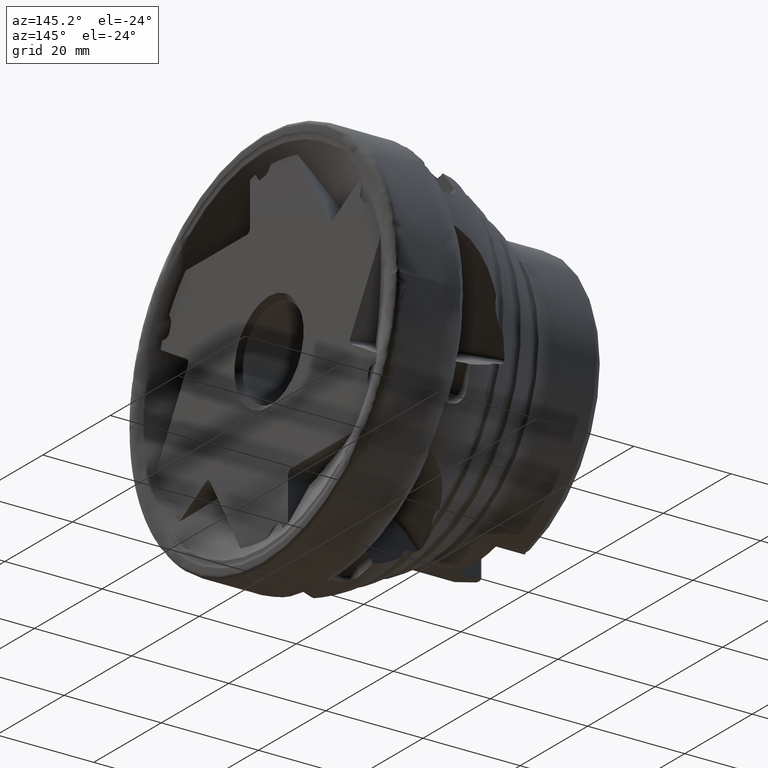
[diagram: clean part render]
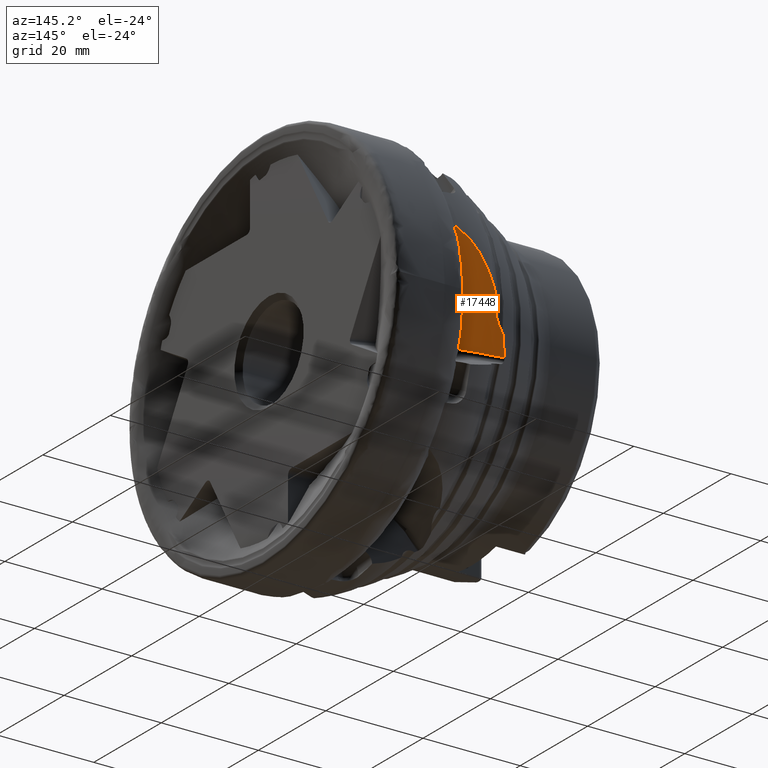
[diagram: same view with one face highlighted and labeled with its STEP entity id]
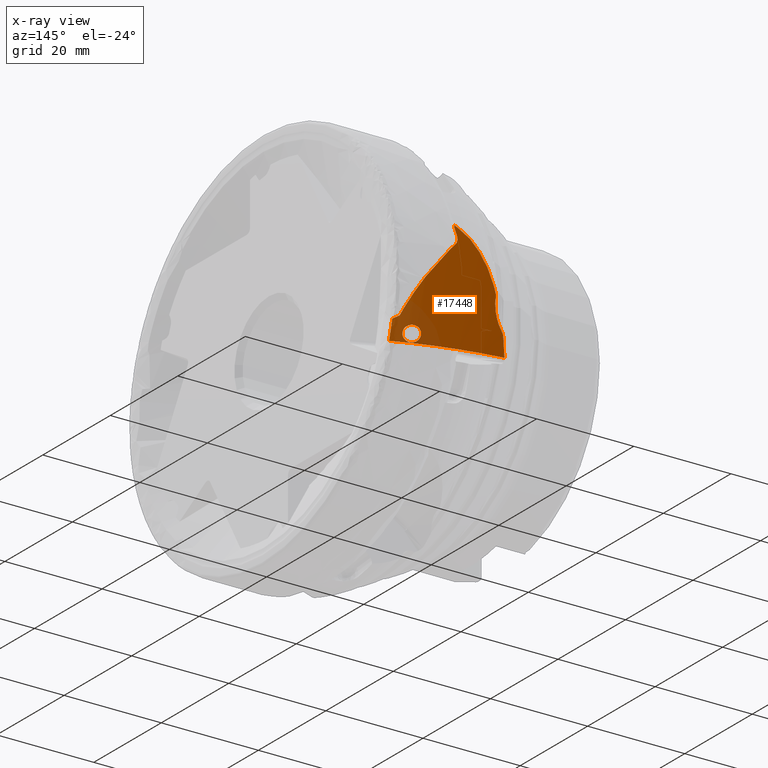
[diagram: x-ray of the same camera — body ghosted, the highlighted face saturated]
A machine part, auxiliary view. The second image highlights one B-rep face of the part: STEP entity #17448.
The next image is the same camera in x-ray: the body ghosted, the highlighted face saturated — about 15% of this face is hidden behind the body in this view.
In plain terms, the highlighted cylindrical surface (partial cylindrical patch) has radius 20 mm, axis along (-0.1638, -0.4932, -0.8543).
Its self-contained STEP definition (entity closure, byte-faithful):
#3 = CARTESIAN_POINT ( 'NONE',  ( -21.35698739462251100, 37.22692158733478600, 2.353677772531312900 ) ) ;
#100 = CARTESIAN_POINT ( 'NONE',  ( -8.487603763851955900, 27.03146724210835600, -1.253296767382191300 ) ) ;
#160 = CARTESIAN_POINT ( 'NONE',  ( -11.33136687848233000, 26.91337459741548000, -2.142088944006622000 ) ) ;
#164 = VERTEX_POINT ( 'NONE', #7594 ) ;
#171 = CARTESIAN_POINT ( 'NONE',  ( -9.018171294729210500, 28.00404665317658700, 0.2983372642901978600 ) ) ;
#232 = CARTESIAN_POINT ( 'NONE',  ( -10.75676454546075300, 26.70886308392896400, -2.277515534888244500 ) ) ;
#274 = CYLINDRICAL_SURFACE ( 'NONE', #12368, 20.00000000000000700 ) ;
#301 = CARTESIAN_POINT ( 'NONE',  ( -13.10549689818851800, 26.87674796982154400, -2.993337145330894800 ) ) ;
#360 = CARTESIAN_POINT ( 'NONE',  ( -10.10931191429867400, 25.70001652276533800, -3.761998595948406400 ) ) ;
#373 = CARTESIAN_POINT ( 'NONE',  ( -13.37372296996332800, 36.84901659969015200, 11.84874238029040100 ) ) ;
#440 = CARTESIAN_POINT ( 'NONE',  ( -13.21841133929820000, 34.86755851196540600, 9.077552072719226900 ) ) ;
#493 = CARTESIAN_POINT ( 'NONE',  ( -21.51366886119073000, 37.03029541050688100, 1.853235943045430200 ) ) ;
#503 = CARTESIAN_POINT ( 'NONE',  ( -12.05028575128478600, 33.05630474114699500, 7.147626323386392100 ) ) ;
#756 = EDGE_CURVE ( 'NONE', #3820, #1860, #11539, .T. ) ;
#829 = ORIENTED_EDGE ( 'NONE', *, *, #17205, .T. ) ;
#1036 = CARTESIAN_POINT ( 'NONE',  ( -13.21702162980494100, 26.25023289032346700, -4.028446331762630500 ) ) ;
#1099 = CARTESIAN_POINT ( 'NONE',  ( -11.39320358636300800, 25.36426994288996900, -4.667037713368366700 ) ) ;
#1287 = CARTESIAN_POINT ( 'NONE',  ( -12.73966423366988500, 37.20949245440171900, 12.89159267683851000 ) ) ;
#1449 = CARTESIAN_POINT ( 'NONE',  ( -8.805491999326914500, 27.56765151760006200, -0.3938446725256390900 ) ) ;
#1510 = CARTESIAN_POINT ( 'NONE',  ( -8.188039216842380300, 26.91111515404835000, -1.426653542736536600 ) ) ;
#1644 = ORIENTED_EDGE ( 'NONE', *, *, #3296, .F. ) ;
#1713 = CARTESIAN_POINT ( 'NONE',  ( -13.99840494508419300, 36.18023990768884300, 10.34561298674690200 ) ) ;
#1734 = CARTESIAN_POINT ( 'NONE',  ( -21.50563949276514100, 37.08555638612772000, 1.930808845727688400 ) ) ;
#1775 = CARTESIAN_POINT ( 'NONE',  ( -13.74243016536638100, 36.68595090557780500, 11.29809648371620600 ) ) ;
#1793 = CARTESIAN_POINT ( 'NONE',  ( -23.94008879940602700, 35.67367860266401900, -4.292504080235083600 ) ) ;
#1821 = CARTESIAN_POINT ( 'NONE',  ( -22.66564008822064100, 35.77088268260508400, -1.657889619683016200 ) ) ;
#1860 = VERTEX_POINT ( 'NONE', #12170 ) ;
#1891 = CARTESIAN_POINT ( 'NONE',  ( -12.68619492598074000, 27.02302649424385100, -2.552058399381838400 ) ) ;
#1895 = CARTESIAN_POINT ( 'NONE',  ( -12.73966423366988500, 37.20949245440171900, 12.89159267683851000 ) ) ;
#1967 = CARTESIAN_POINT ( 'NONE',  ( -12.81601859033911800, 37.14600330654131000, 12.73777290038139600 ) ) ;
#2113 = CARTESIAN_POINT ( 'NONE',  ( -23.77480656102061500, 35.76115449471539900, -3.856415506058682700 ) ) ;
#2753 = CARTESIAN_POINT ( 'NONE',  ( -12.82274174710279400, 25.83946406291871200, -4.478964703168004200 ) ) ;
#2819 = CARTESIAN_POINT ( 'NONE',  ( -13.02756850959754200, 26.00856528304806400, -4.311296778219222900 ) ) ;
#2968 = CARTESIAN_POINT ( 'NONE',  ( -7.389837275860943000, 26.61345486813350900, -1.904144003451433600 ) ) ;
#3039 = EDGE_CURVE ( 'NONE', #10574, #13895, #13698, .T. ) ;
#3112 = VERTEX_POINT ( 'NONE', #360 ) ;
#3143 = CARTESIAN_POINT ( 'NONE',  ( -22.82910811290572900, 35.72351031567107100, -2.017763689393240700 ) ) ;
#3151 = CARTESIAN_POINT ( 'NONE',  ( -8.930957648319610700, 27.81605169535893300, 1.287162637211914100E-011 ) ) ;
#3205 = CARTESIAN_POINT ( 'NONE',  ( -21.67954234183394700, 36.54732012621410300, 1.007184445359403400 ) ) ;
#3296 = EDGE_CURVE ( 'NONE', #12126, #3820, #10193, .T. ) ;
#3424 = CARTESIAN_POINT ( 'NONE',  ( -13.90981149430509600, 36.54888357619060500, 10.95445631713279900 ) ) ;
#3489 = CARTESIAN_POINT ( 'NONE',  ( -13.59934015681832900, 35.46369403815785400, 9.643532846223594700 ) ) ;
#3681 = DIRECTION ( 'NONE',  ( -0.1638425078055066300, -0.4932432545499215200, -0.8543223773710975100 ) ) ;
#3712 = CARTESIAN_POINT ( 'NONE',  ( -7.389837275860943000, 26.61345486813350900, -1.904144003451433600 ) ) ;
#3820 = VERTEX_POINT ( 'NONE', #5899 ) ;
#4088 = CARTESIAN_POINT ( 'NONE',  ( -10.90259280086075400, 25.38064102083238900, -4.490773307575353500 ) ) ;
#4215 = CARTESIAN_POINT ( 'NONE',  ( -10.39813553146027700, 25.50608900250563200, -4.150514167932356300 ) ) ;
#4273 = CARTESIAN_POINT ( 'NONE',  ( -10.15138207479447600, 25.65442175482732200, -3.847037698668992700 ) ) ;
#4372 = CARTESIAN_POINT ( 'NONE',  ( -24.64162791851173400, 34.97773636613374700, -6.505853684649499000 ) ) ;
#4476 = B_SPLINE_CURVE_WITH_KNOTS ( 'NONE', 3,
 ( #9593, #18553, #4999, #6701, #9535, #8062 ),
 .UNSPECIFIED., .F., .F.,
 ( 4, 2, 4 ),
 ( 0.004743230221606898000, 0.005463370634049653400, 0.006183511046492408100 ),
 .UNSPECIFIED. ) ;
#4477 = CARTESIAN_POINT ( 'NONE',  ( -8.562142530267458100, 27.06020102734981600, -1.213775207771076200 ) ) ;
#4549 = CARTESIAN_POINT ( 'NONE',  ( -9.769569444869960200, 29.34091459919913800, 2.314786795120991500 ) ) ;
#4671 = CARTESIAN_POINT ( 'NONE',  ( -11.53712322934124800, 26.96441207940456800, -2.138153975304117900 ) ) ;
#4675 = CARTESIAN_POINT ( 'NONE',  ( -8.716646907799296100, 27.38242630131827600, -0.6914940557986768400 ) ) ;
#4731 = CARTESIAN_POINT ( 'NONE',  ( -21.51366886119073000, 37.03029541050688100, 1.853235943045430200 ) ) ;
#4742 = CARTESIAN_POINT ( 'NONE',  ( -12.92000287561025800, 34.40299873816738300, 8.608863474226412300 ) ) ;
#4809 = CARTESIAN_POINT ( 'NONE',  ( -13.08139445723112500, 36.98531259563015500, 12.28895013479475500 ) ) ;
#4873 = ORIENTED_EDGE ( 'NONE', *, *, #10517, .F. ) ;
#4875 = CARTESIAN_POINT ( 'NONE',  ( -12.93565579809423300, 37.05510051663141300, 12.50877189704518400 ) ) ;
#4936 = CARTESIAN_POINT ( 'NONE',  ( -13.67486079712597800, 35.58358841343007800, 9.756469715962373000 ) ) ;
#4999 = CARTESIAN_POINT ( 'NONE',  ( -23.21051940655157300, 35.67992348270923500, -2.802923446848105900 ) ) ;
#5006 = CARTESIAN_POINT ( 'NONE',  ( -12.76007896073398000, 37.19464124385619600, 12.85362133527217000 ) ) ;
#5507 = EDGE_CURVE ( 'NONE', #8751, #3112, #13807, .T. ) ;
#5649 = CARTESIAN_POINT ( 'NONE',  ( -11.18879738148129600, 25.35844090640086200, -4.611467833415601600 ) ) ;
#5699 = CARTESIAN_POINT ( 'NONE',  ( -16.43527252023047000, 37.80602642600208400, 10.14490336675689400 ) ) ;
#5784 = CARTESIAN_POINT ( 'NONE',  ( -13.17956543518276600, 26.18894328721484000, -4.104919547730936800 ) ) ;
#5899 = CARTESIAN_POINT ( 'NONE',  ( -20.71060675804169500, 37.45944537741488000, 3.724379154416995100 ) ) ;
#5909 = B_SPLINE_CURVE_WITH_KNOTS ( 'NONE', 3,
 ( #1287, #7280, #14848, #19335 ),
 .UNSPECIFIED., .F., .F.,
 ( 4, 4 ),
 ( 0.009791526005842422100, 0.01058030403952709900 ),
 .UNSPECIFIED. ) ;
#5998 = CARTESIAN_POINT ( 'NONE',  ( -8.618326002400953800, 27.19874801870867400, -0.9870732044077277200 ) ) ;
#6063 = CARTESIAN_POINT ( 'NONE',  ( -9.599411818024114100, 29.05028970220067200, 1.889075306732855800 ) ) ;
#6182 = CARTESIAN_POINT ( 'NONE',  ( -21.53048751389069100, 36.91454344753186900, 1.690748479542196500 ) ) ;
#6259 = CARTESIAN_POINT ( 'NONE',  ( -13.17858225128658700, 36.93933030651033500, 12.14223915724107200 ) ) ;
#6295 = CARTESIAN_POINT ( 'NONE',  ( -13.18327692371711100, 26.79245159033556000, -3.165565655191946400 ) ) ;
#6319 = CARTESIAN_POINT ( 'NONE',  ( -13.66700778380944900, 36.71675537023855200, 11.40778410829822500 ) ) ;
#6455 = CARTESIAN_POINT ( 'NONE',  ( -14.00482104618721000, 36.28591208183188900, 10.49227008728961700 ) ) ;
#6523 = CARTESIAN_POINT ( 'NONE',  ( -11.22459229204468500, 31.75537558237612100, 5.620100004712858400 ) ) ;
#6701 = CARTESIAN_POINT ( 'NONE',  ( -23.43142938601717500, 35.69261183380714200, -3.227527749895421100 ) ) ;
#6765 = CARTESIAN_POINT ( 'NONE',  ( -17.40217997283556900, 37.86364169704514600, 9.046712885416068800 ) ) ;
#6882 = FACE_OUTER_BOUND ( 'NONE', #15674, .T. ) ;
#6932 = CARTESIAN_POINT ( 'NONE',  ( -23.66625336517632400, 35.74943948602263100, -3.644844838898282800 ) ) ;
#7173 = CARTESIAN_POINT ( 'NONE',  ( -13.29892285383679400, 26.60315717532660100, -3.521256661866992500 ) ) ;
#7177 = ORIENTED_EDGE ( 'NONE', *, *, #12308, .F. ) ;
#7236 = CARTESIAN_POINT ( 'NONE',  ( -10.20387745946594800, 25.61311814216556800, -3.927399534518599500 ) ) ;
#7280 = CARTESIAN_POINT ( 'NONE',  ( -12.97206458974979200, 37.25443764584021300, 12.77376384844694000 ) ) ;
#7368 = CARTESIAN_POINT ( 'NONE',  ( -13.26114916288432100, 26.70805527161941800, -3.337998353949306600 ) ) ;
#7443 = CARTESIAN_POINT ( 'NONE',  ( -8.089468592005330200, 26.87126751836628500, -1.486689585924167300 ) ) ;
#7500 = CARTESIAN_POINT ( 'NONE',  ( -8.576963324810437300, 27.10673831636134400, -1.136993049854909900 ) ) ;
#7560 = CARTESIAN_POINT ( 'NONE',  ( -9.823234451162955200, 29.43853579686313500, 2.457467930066788800 ) ) ;
#7594 = CARTESIAN_POINT ( 'NONE',  ( -12.73966423366988500, 37.20949245440171900, 12.89159267683851000 ) ) ;
#7672 = CARTESIAN_POINT ( 'NONE',  ( -11.94092485594582700, 27.02934240265900500, -2.200493792647141500 ) ) ;
#7700 = CARTESIAN_POINT ( 'NONE',  ( -21.51366886119073000, 37.03029541050688100, 1.853235943045430200 ) ) ;
#7738 = CARTESIAN_POINT ( 'NONE',  ( -12.13974076754452700, 27.04697698592768200, -2.258930621122060800 ) ) ;
#7769 = CARTESIAN_POINT ( 'NONE',  ( -21.39585282600767300, 37.21165902479405900, 2.268340803946936800 ) ) ;
#7797 = CARTESIAN_POINT ( 'NONE',  ( -12.42559446394491500, 27.05005606982186400, -2.384515277794818600 ) ) ;
#7805 = CARTESIAN_POINT ( 'NONE',  ( -13.90741731448520500, 35.94678061561968000, 10.08741416894188200 ) ) ;
#7865 = CARTESIAN_POINT ( 'NONE',  ( -11.84063069344034100, 27.01615922447116000, -2.179187062366525000 ) ) ;
#7900 = CARTESIAN_POINT ( 'NONE',  ( -23.90414891483517600, 35.70598884262130200, -4.183569302285696300 ) ) ;
#7936 = CARTESIAN_POINT ( 'NONE',  ( -12.82544541010480500, 37.12254543929035600, 12.69584338314953300 ) ) ;
#8009 = CARTESIAN_POINT ( 'NONE',  ( -12.33735560975294600, 33.49903461440976600, 7.641864390229705400 ) ) ;
#8062 = CARTESIAN_POINT ( 'NONE',  ( -23.66625336517632400, 35.74943948602263100, -3.644844838898282800 ) ) ;
#8067 = B_SPLINE_CURVE_WITH_KNOTS ( 'NONE', 3,
 ( #6932, #17906, #2113, #11201, #7900, #18463 ),
 .UNSPECIFIED., .F., .F.,
 ( 4, 2, 4 ),
 ( 3.966242301486055800E-007, 0.0003560846957622191100, 0.0007117727672942896800 ),
 .UNSPECIFIED. ) ;
#8271 = CARTESIAN_POINT ( 'NONE',  ( -19.83119669721524400, 37.70284028292128700, 5.441427261978064100 ) ) ;
#8355 = DIRECTION ( 'NONE',  ( -0.1638425078055066000, -0.4932432545499214600, -0.8543223773710975100 ) ) ;
#8360 = EDGE_CURVE ( 'NONE', #19173, #164, #14766, .T. ) ;
#8402 = VERTEX_POINT ( 'NONE', #18293 ) ;
#8444 = B_SPLINE_CURVE_WITH_KNOTS ( 'NONE', 3,
 ( #2968, #13503, #10585, #7443, #1510, #16544, #19499, #16665, #100, #12112, #10397, #4477, #13689, #7500, #14999, #5998, #10464, #19433, #4675, #1449, #18039, #11919 ),
 .UNSPECIFIED., .F., .F.,
 ( 4, 2, 2, 2, 2, 2, 2, 2, 2, 2, 4 ),
 ( 2.076592445744511200E-015, 0.0007324604447470476700, 0.001098690667119530700, 0.001281805778305769900, 0.001373363333898887300, 0.001419142111695443900, 0.001464920889492000400, 0.001648036000678220600, 0.001831151111864441400, 0.002197381334236883800, 0.002929841778981763100 ),
 .UNSPECIFIED. ) ;
#8449 = ORIENTED_EDGE ( 'NONE', *, *, #8360, .F. ) ;
#8514 = CARTESIAN_POINT ( 'NONE',  ( -22.99999999999999600, 35.69990676882624600, -2.372878544961108300 ) ) ;
#8552 = CARTESIAN_POINT ( 'NONE',  ( -3.264018289349467600, 39.03411670887214800, 19.60907336833998500 ) ) ;
#8741 = CARTESIAN_POINT ( 'NONE',  ( -17.08778751747194800, 37.85108122603276800, 9.423982240822800400 ) ) ;
#8748 = CARTESIAN_POINT ( 'NONE',  ( -11.80181317055899500, 25.41747698841190900, -4.723366061025629400 ) ) ;
#8751 = VERTEX_POINT ( 'NONE', #6295 ) ;
#8797 = CARTESIAN_POINT ( 'NONE',  ( -20.28709862184996400, 37.59895643065703300, 4.591911649937205900 ) ) ;
#8813 = CARTESIAN_POINT ( 'NONE',  ( -12.58396336906004000, 25.68704668507855600, -4.609908845858806900 ) ) ;
#9074 = CARTESIAN_POINT ( 'NONE',  ( -10.10657475450916800, 29.92983635952509000, 3.162165224181376500 ) ) ;
#9150 = CARTESIAN_POINT ( 'NONE',  ( -8.015451015709159000, 24.73006232692442200, -5.166275575421843200 ) ) ;
#9229 = CARTESIAN_POINT ( 'NONE',  ( -24.95008533914213800, 34.56978414381309500, -7.599506299056047400 ) ) ;
#9271 = CARTESIAN_POINT ( 'NONE',  ( -10.07985089483686600, 26.22433918512649200, -2.886527317359588900 ) ) ;
#9336 = CARTESIAN_POINT ( 'NONE',  ( -12.98611837135493000, 26.94244928551016100, -2.828338953844379900 ) ) ;
#9344 = CARTESIAN_POINT ( 'NONE',  ( -12.78056964337569400, 37.17986989210519500, 12.81567056863614300 ) ) ;
#9352 = CARTESIAN_POINT ( 'NONE',  ( -21.14788859506796500, 37.30903526500795700, 2.812796764722076800 ) ) ;
#9411 = CARTESIAN_POINT ( 'NONE',  ( -13.76695866864741900, 36.67521047203737100, 11.26131093749696200 ) ) ;
#9478 = CARTESIAN_POINT ( 'NONE',  ( -13.88122383768387500, 36.58500531211954900, 11.03158158055565100 ) ) ;
#9535 = CARTESIAN_POINT ( 'NONE',  ( -23.54544547751019200, 35.71033035473097100, -3.437964494477284500 ) ) ;
#9593 = CARTESIAN_POINT ( 'NONE',  ( -22.99999999999999600, 35.69990676882624600, -2.372878544961108300 ) ) ;
#9962 = AXIS2_PLACEMENT_3D ( 'NONE', #15667, #3681, #14205 ) ;
#10193 = B_SPLINE_CURVE_WITH_KNOTS ( 'NONE', 3,
 ( #11825, #16316, #18954, #12967, #5699, #8741, #6765, #14786, #17818, #8271, #8797, #19343 ),
 .UNSPECIFIED., .F., .F.,
 ( 4, 2, 2, 2, 2, 4 ),
 ( 2.277962816061533400E-007, 0.002892627366585748800, 0.004338827151737822800, 0.005785026936889896800, 0.008677426507194050900, 0.01156982607749820400 ),
 .UNSPECIFIED. ) ;
#10254 = CARTESIAN_POINT ( 'NONE',  ( -10.63303523880709500, 25.42874038825375700, -4.337698150651515800 ) ) ;
#10319 = CARTESIAN_POINT ( 'NONE',  ( -12.89705205540204100, 25.89462562228510100, -4.427252800990389800 ) ) ;
#10397 = CARTESIAN_POINT ( 'NONE',  ( -8.545663969050831800, 27.04636682912978400, -1.235116291881623600 ) ) ;
#10464 = CARTESIAN_POINT ( 'NONE',  ( -8.635709787662193500, 27.22921823277008000, -0.9380345499846788300 ) ) ;
#10517 = EDGE_CURVE ( 'NONE', #13895, #12597, #4476, .T. ) ;
#10574 = VERTEX_POINT ( 'NONE', #493 ) ;
#10585 = CARTESIAN_POINT ( 'NONE',  ( -7.789681151511317100, 26.75676529061014400, -1.663194985786246200 ) ) ;
#10643 = CARTESIAN_POINT ( 'NONE',  ( -22.99999999999999600, 35.69990676882624600, -2.372878544961108300 ) ) ;
#10648 = CARTESIAN_POINT ( 'NONE',  ( -10.10931191429867400, 25.70001652276533800, -3.761998595948406400 ) ) ;
#10664 = CARTESIAN_POINT ( 'NONE',  ( -21.35698739462251100, 37.22692158733478600, 2.353677772531312900 ) ) ;
#10771 = CARTESIAN_POINT ( 'NONE',  ( -10.94253953845065100, 26.78596942177610200, -2.211672337232488200 ) ) ;
#10779 = CARTESIAN_POINT ( 'NONE',  ( -12.95999282916566600, 37.04348020004550100, 12.47216062741311800 ) ) ;
#10841 = CARTESIAN_POINT ( 'NONE',  ( -11.91235519381176300, 32.83756736884577500, 6.894937916920362400 ) ) ;
#10906 = CARTESIAN_POINT ( 'NONE',  ( -10.00056695468658500, 25.89595245681963200, -3.412875900973351100 ) ) ;
#10918 = CARTESIAN_POINT ( 'NONE',  ( -12.88781175306771800, 37.07905880491948400, 12.58227093304631700 ) ) ;
#10983 = CARTESIAN_POINT ( 'NONE',  ( -13.95806108267035500, 36.47108553094299300, 10.80002593752590400 ) ) ;
#11201 = CARTESIAN_POINT ( 'NONE',  ( -23.86444702970904100, 35.73089230230164800, -4.074551802458493900 ) ) ;
#11343 = B_SPLINE_CURVE_WITH_KNOTS ( 'NONE', 3,
 ( #1793, #17865, #4372, #9229 ),
 .UNSPECIFIED., .F., .F.,
 ( 4, 4 ),
 ( 6.589475367249894900E-007, 0.003620838472103970900 ),
 .UNSPECIFIED. ) ;
#11348 = LINE ( 'NONE', #8552, #13246 ) ;
#11539 = B_SPLINE_CURVE_WITH_KNOTS ( 'NONE', 3,
 ( #15341, #15272, #9352, #10664 ),
 .UNSPECIFIED., .F., .F.,
 ( 4, 4 ),
 ( 4.605732559548160400E-007, 0.001533659033535276100 ),
 .UNSPECIFIED. ) ;
#11650 = CARTESIAN_POINT ( 'NONE',  ( -13.27010916328966400, 26.37087295997572800, -3.867762137725969200 ) ) ;
#11776 = CARTESIAN_POINT ( 'NONE',  ( -13.28601809320336700, 26.43137035408078400, -3.781904922673326100 ) ) ;
#11825 = CARTESIAN_POINT ( 'NONE',  ( -13.42999999999989300, 37.34722744493836900, 12.52339742945346600 ) ) ;
#11837 = CARTESIAN_POINT ( 'NONE',  ( -13.08426481534929500, 26.06747174948428000, -4.247052614685555800 ) ) ;
#11919 = CARTESIAN_POINT ( 'NONE',  ( -8.930957648319610700, 27.81605169535893300, 1.287162637211914100E-011 ) ) ;
#12073 = CARTESIAN_POINT ( 'NONE',  ( -21.48348016887477700, 37.12558828378885800, 2.015735384121433600 ) ) ;
#12112 = CARTESIAN_POINT ( 'NONE',  ( -8.528868303229295100, 27.04378142978962200, -1.237425335999581500 ) ) ;
#12126 = VERTEX_POINT ( 'NONE', #14432 ) ;
#12169 = CARTESIAN_POINT ( 'NONE',  ( -21.95183258422455500, 36.19435477533786400, 0.1221708531668211100 ) ) ;
#12170 = CARTESIAN_POINT ( 'NONE',  ( -21.35698739462251100, 37.22692158733478600, 2.353677772531312900 ) ) ;
#12227 = CARTESIAN_POINT ( 'NONE',  ( -21.63460922136070900, 36.63016562381346100, 1.181215778830426100 ) ) ;
#12231 = CARTESIAN_POINT ( 'NONE',  ( -10.06729157184609500, 25.74555729894072800, -3.677060193620803800 ) ) ;
#12236 = ORIENTED_EDGE ( 'NONE', *, *, #13284, .F. ) ;
#12241 = CARTESIAN_POINT ( 'NONE',  ( -13.82939622518191000, 36.63369048343450600, 11.14705466785930500 ) ) ;
#12304 = CARTESIAN_POINT ( 'NONE',  ( -10.42941587678102300, 26.53341802690604500, -2.467323659501468900 ) ) ;
#12308 = EDGE_CURVE ( 'NONE', #13426, #19173, #8444, .T. ) ;
#12315 = CARTESIAN_POINT ( 'NONE',  ( -13.98722032727815200, 36.12355126798355100, 10.27367883973630900 ) ) ;
#12368 = AXIS2_PLACEMENT_3D ( 'NONE', #16710, #15049, #16653 ) ;
#12371 = CARTESIAN_POINT ( 'NONE',  ( -22.35936535405853200, 35.90211951863541600, -0.9440256862070198800 ) ) ;
#12376 = CARTESIAN_POINT ( 'NONE',  ( -12.51523513406234200, 27.04460576408312600, -2.435529218736394200 ) ) ;
#12435 = CARTESIAN_POINT ( 'NONE',  ( -12.76737332366856700, 27.00672115106967700, -2.617802015511542000 ) ) ;
#12444 = CARTESIAN_POINT ( 'NONE',  ( -13.94415910564349100, 36.00749962793693700, 10.14348395382620500 ) ) ;
#12475 = ORIENTED_EDGE ( 'NONE', *, *, #3039, .F. ) ;
#12505 = CARTESIAN_POINT ( 'NONE',  ( -14.00017311822700700, 36.33552374666014400, 10.56778647958160300 ) ) ;
#12597 = VERTEX_POINT ( 'NONE', #13283 ) ;
#12967 = CARTESIAN_POINT ( 'NONE',  ( -16.09670532445414900, 37.77363027853368700, 10.48944088501178000 ) ) ;
#13246 = VECTOR ( 'NONE', #8355, 1000.000000000000200 ) ;
#13283 = CARTESIAN_POINT ( 'NONE',  ( -23.66625336517632400, 35.74943948602263100, -3.644844838898282800 ) ) ;
#13284 = EDGE_CURVE ( 'NONE', #8402, #18260, #11343, .T. ) ;
#13302 = CARTESIAN_POINT ( 'NONE',  ( -10.80881076239994300, 25.39338396951459500, -4.443466306431401100 ) ) ;
#13426 = VERTEX_POINT ( 'NONE', #3712 ) ;
#13503 = CARTESIAN_POINT ( 'NONE',  ( -7.594283937862657700, 26.68032091582985300, -1.788328611540092900 ) ) ;
#13558 = CARTESIAN_POINT ( 'NONE',  ( -9.285361797541405300, 28.57400044577281400, 1.186847703247447600 ) ) ;
#13615 = CARTESIAN_POINT ( 'NONE',  ( -22.21568734456689900, 35.98620642840543100, -0.5882115270485203100 ) ) ;
#13647 = CARTESIAN_POINT ( 'NONE',  ( -21.42908351320159000, 37.18864351424011300, 2.183638483268417000 ) ) ;
#13648 = EDGE_CURVE ( 'NONE', #12597, #8402, #8067, .T. ) ;
#13689 = CARTESIAN_POINT ( 'NONE',  ( -8.564083150087334700, 27.06824892047388400, -1.200418991909285100 ) ) ;
#13698 = B_SPLINE_CURVE_WITH_KNOTS ( 'NONE', 3,
 ( #4731, #6182, #18279, #12227, #3205, #15121, #12169, #13615, #12371, #1821, #3143, #10643 ),
 .UNSPECIFIED., .F., .F.,
 ( 4, 2, 2, 2, 2, 4 ),
 ( 2.356536129697761900E-006, 0.0005949657468143507400, 0.001187574957499003700, 0.002372793378868302000, 0.003558011800237599500, 0.004743230221606898000 ),
 .UNSPECIFIED. ) ;
#13742 = CARTESIAN_POINT ( 'NONE',  ( -12.23838969946889500, 27.05131030962764900, -2.296339421971485000 ) ) ;
#13751 = CARTESIAN_POINT ( 'NONE',  ( -12.48326355812716800, 33.72301679348229400, 7.885275319475181500 ) ) ;
#13807 = B_SPLINE_CURVE_WITH_KNOTS ( 'NONE', 3,
 ( #14731, #7368, #7173, #11776, #11650, #1036, #5784, #11837, #2819, #10319, #2753, #8813, #19422, #16399, #8748, #1099, #5649, #4088, #13302, #10254, #17704, #4215, #19224, #7236, #4273, #17896 ),
 .UNSPECIFIED., .F., .F.,
 ( 4, 2, 2, 2, 2, 2, 2, 2, 2, 2, 2, 2, 4 ),
 ( 0.004977347683946243400, 0.005600253768491231900, 0.005911706810763727100, 0.006223159853036222200, 0.006534612895308717300, 0.006846065937581212500, 0.007468972022126202700, 0.008091878106671193000, 0.008714784191216185000, 0.009026237233488682700, 0.009337690275761180400, 0.009649143318033678200, 0.009960596360306175900 ),
 .UNSPECIFIED. ) ;
#13895 = VERTEX_POINT ( 'NONE', #8514 ) ;
#13938 = CARTESIAN_POINT ( 'NONE',  ( -13.47241577192453300, 36.80530199548974200, 11.70221068328327800 ) ) ;
#14003 = CARTESIAN_POINT ( 'NONE',  ( -13.97679746305925400, 36.42883294437053400, 10.72270231835826600 ) ) ;
#14205 = DIRECTION ( 'NONE',  ( 0.0000000000000000000, 0.8660254037844397100, -0.4999999999999980600 ) ) ;
#14402 = CIRCLE ( 'NONE', #9962, 20.00000000000000700 ) ;
#14432 = CARTESIAN_POINT ( 'NONE',  ( -13.42999999999989300, 37.34722744493836900, 12.52339742945346600 ) ) ;
#14731 = CARTESIAN_POINT ( 'NONE',  ( -13.18327692371711100, 26.79245159033556000, -3.165565655191946400 ) ) ;
#14766 = B_SPLINE_CURVE_WITH_KNOTS ( 'NONE', 3,
 ( #3151, #171, #16482, #13558, #18042, #6063, #18164, #4549, #7560, #18107, #9074, #15531, #6523, #10841, #503, #8009, #13751, #4742, #440, #3489, #4936, #15402, #18561, #7805, #12444, #12315, #1713, #6455, #12505, #14003, #10983, #3424, #9478, #12241, #17042, #9411, #1775, #6319, #15260, #13938, #373, #6259, #4809, #10779, #4875, #10918, #18500, #7936, #1967, #9344, #5006, #1895 ),
 .UNSPECIFIED., .F., .F.,
 ( 4, 2, 2, 2, 2, 2, 2, 2, 2, 2, 2, 2, 2, 2, 2, 2, 2, 2, 2, 2, 2, 2, 2, 2, 2, 4 ),
 ( 0.002929841778981763100, 0.004033524413070346300, 0.005137207047158929100, 0.005689048364203221800, 0.006240889681247513600, 0.007344572315336106800, 0.01175930285169047300, 0.01286298548577905300, 0.01396666811986763500, 0.01617403338804480500, 0.01672587470508909600, 0.01700179536361125200, 0.01727771602213340800, 0.01755363668065556400, 0.01782955733917771700, 0.01810547799769987600, 0.01838139865622202800, 0.01851935898548311100, 0.01865731931474419100, 0.01893323997326635400, 0.01948508129031066600, 0.02003692260735497700, 0.02017488293661605400, 0.02031284326587712600, 0.02045080359513820300, 0.02058876392439927500 ),
 .UNSPECIFIED. ) ;
#14786 = CARTESIAN_POINT ( 'NONE',  ( -18.29689212646819000, 37.87198802439566900, 7.894461433398942200 ) ) ;
#14848 = CARTESIAN_POINT ( 'NONE',  ( -13.20216765930407600, 37.30040103923425900, 12.65103217763253700 ) ) ;
#14999 = CARTESIAN_POINT ( 'NONE',  ( -8.588447408605480500, 27.13750606394817300, -1.086494884222830400 ) ) ;
#15049 = DIRECTION ( 'NONE',  ( -0.1638425078055066000, -0.4932432545499214600, -0.8543223773710974000 ) ) ;
#15121 = CARTESIAN_POINT ( 'NONE',  ( -21.83089705983346800, 36.31848410792684200, 0.4781191219420955500 ) ) ;
#15191 = CARTESIAN_POINT ( 'NONE',  ( -10.01518342828216900, 26.11251425093872700, -3.057168096135884500 ) ) ;
#15260 = CARTESIAN_POINT ( 'NONE',  ( -13.61790339357087200, 36.73841880468863500, 11.48126491972387000 ) ) ;
#15272 = CARTESIAN_POINT ( 'NONE',  ( -20.93253089465257600, 37.38633965076498800, 3.269780095750870300 ) ) ;
#15341 = CARTESIAN_POINT ( 'NONE',  ( -20.71060675804169500, 37.45944537741488000, 3.724379154416995100 ) ) ;
#15402 = CARTESIAN_POINT ( 'NONE',  ( -13.79202866594734700, 35.76477222663044800, 9.921774256425344200 ) ) ;
#15531 = CARTESIAN_POINT ( 'NONE',  ( -10.70505927289578600, 30.92640699104413200, 4.547985650033316700 ) ) ;
#15621 = CARTESIAN_POINT ( 'NONE',  ( -8.930957648319610700, 27.81605169535893300, 1.287162637211914100E-011 ) ) ;
#15666 = EDGE_CURVE ( 'NONE', #3112, #8751, #17249, .T. ) ;
#15667 = CARTESIAN_POINT ( 'NONE',  ( -8.015451015709162500, 42.05057040261323200, -15.16627557542181000 ) ) ;
#15674 = EDGE_LOOP ( 'NONE', ( #7177, #829, #17953, #12236, #16396, #4873, #12475, #18243, #18816, #1644, #17727, #8449 ) ) ;
#16182 = EDGE_LOOP ( 'NONE', ( #18809, #18511 ) ) ;
#16316 = CARTESIAN_POINT ( 'NONE',  ( -14.27648032242492500, 37.52120463745358600, 12.04918774323731900 ) ) ;
#16319 = EDGE_CURVE ( 'NONE', #164, #12126, #5909, .T. ) ;
#16396 = ORIENTED_EDGE ( 'NONE', *, *, #13648, .F. ) ;
#16399 = CARTESIAN_POINT ( 'NONE',  ( -12.00880185705884700, 25.46533454347218800, -4.724385441740219300 ) ) ;
#16482 = CARTESIAN_POINT ( 'NONE',  ( -9.087536862259197400, 28.19428449817591400, 0.6012418143987530200 ) ) ;
#16544 = CARTESIAN_POINT ( 'NONE',  ( -8.341446008165229700, 26.96824144028044000, -1.344352403124019900 ) ) ;
#16653 = DIRECTION ( 'NONE',  ( 0.0000000000000000000, 0.8660254037844400400, -0.4999999999999978900 ) ) ;
#16665 = CARTESIAN_POINT ( 'NONE',  ( -8.464266940733828900, 27.02002639507924200, -1.269965475976015100 ) ) ;
#16710 = CARTESIAN_POINT ( 'NONE',  ( -3.264018289349469400, 56.35462478456095400, 9.609073368340016700 ) ) ;
#16896 = CARTESIAN_POINT ( 'NONE',  ( -9.994724350004014800, 25.95010616263071400, -3.321746885797487900 ) ) ;
#16923 = VERTEX_POINT ( 'NONE', #9150 ) ;
#17042 = CARTESIAN_POINT ( 'NONE',  ( -13.81020371415548600, 36.64890283504241400, 11.18573763252413200 ) ) ;
#17205 = EDGE_CURVE ( 'NONE', #13426, #16923, #11348, .T. ) ;
#17249 = B_SPLINE_CURVE_WITH_KNOTS ( 'NONE', 3,
 ( #10648, #12231, #18426, #10906, #16896, #15191, #9271, #18493, #12304, #232, #10771, #160, #4671, #7865, #7672, #7738, #13742, #7797, #12376, #1891, #12435, #9336, #301, #18221 ),
 .UNSPECIFIED., .F., .F.,
 ( 4, 2, 2, 2, 2, 2, 2, 2, 2, 2, 2, 4 ),
 ( 8.673617379884035500E-019, 0.0003110842302466429800, 0.0006221684604932850900, 0.001244336920986564300, 0.001866505381479843400, 0.002488673841973122600, 0.003110842302466401700, 0.003421926532713042100, 0.003733010762959682600, 0.004044094993206322600, 0.004355179223452963400, 0.004977347683946243400 ),
 .UNSPECIFIED. ) ;
#17448 = ADVANCED_FACE ( 'NONE', ( #6882, #18181 ), #274, .F. ) ;
#17704 = CARTESIAN_POINT ( 'NONE',  ( -10.55073707470580600, 25.45124083863185800, -4.279308236100939100 ) ) ;
#17727 = ORIENTED_EDGE ( 'NONE', *, *, #16319, .F. ) ;
#17818 = CARTESIAN_POINT ( 'NONE',  ( -18.83591701582286500, 37.83928978039955400, 7.092595074206693400 ) ) ;
#17847 = EDGE_CURVE ( 'NONE', #1860, #10574, #18568, .T. ) ;
#17865 = CARTESIAN_POINT ( 'NONE',  ( -24.30634189008144100, 35.34441418275491700, -5.402627264613993700 ) ) ;
#17896 = CARTESIAN_POINT ( 'NONE',  ( -10.10931191429867400, 25.70001652276533800, -3.761998595948406400 ) ) ;
#17906 = CARTESIAN_POINT ( 'NONE',  ( -23.72602377550054300, 35.76878895789811700, -3.747200101563138200 ) ) ;
#17953 = ORIENTED_EDGE ( 'NONE', *, *, #19522, .T. ) ;
#18039 = CARTESIAN_POINT ( 'NONE',  ( -8.873078196143808300, 27.69128859212624500, -0.1979919213305372500 ) ) ;
#18042 = CARTESIAN_POINT ( 'NONE',  ( -9.417203773449191600, 28.76276082384977100, 1.466322643210293400 ) ) ;
#18107 = CARTESIAN_POINT ( 'NONE',  ( -9.989777584214136800, 29.73241610364230100, 2.882410149101183500 ) ) ;
#18164 = CARTESIAN_POINT ( 'NONE',  ( -9.658175778538453200, 29.14675416101620400, 2.030395306116270900 ) ) ;
#18181 = FACE_BOUND ( 'NONE', #16182, .T. ) ;
#18221 = CARTESIAN_POINT ( 'NONE',  ( -13.18327692371711100, 26.79245159033556000, -3.165565655191946400 ) ) ;
#18243 = ORIENTED_EDGE ( 'NONE', *, *, #17847, .F. ) ;
#18260 = VERTEX_POINT ( 'NONE', #19502 ) ;
#18279 = CARTESIAN_POINT ( 'NONE',  ( -21.56021650805171000, 36.81394397531572300, 1.522937637081574800 ) ) ;
#18293 = CARTESIAN_POINT ( 'NONE',  ( -23.94008879940602700, 35.67367860266401900, -4.292504080235083600 ) ) ;
#18426 = CARTESIAN_POINT ( 'NONE',  ( -10.03704783034265800, 25.79385811754529500, -3.590277259276296400 ) ) ;
#18463 = CARTESIAN_POINT ( 'NONE',  ( -23.94008879940602700, 35.67367860266401900, -4.292504080235083600 ) ) ;
#18493 = CARTESIAN_POINT ( 'NONE',  ( -10.28774152042164600, 26.43488626330181300, -2.591518784727436600 ) ) ;
#18500 = CARTESIAN_POINT ( 'NONE',  ( -12.86391452542867600, 37.09109229404629800, 12.61901774417873600 ) ) ;
#18511 = ORIENTED_EDGE ( 'NONE', *, *, #5507, .T. ) ;
#18553 = CARTESIAN_POINT ( 'NONE',  ( -23.10383415565968700, 35.68556521991553200, -2.588646840443505700 ) ) ;
#18561 = CARTESIAN_POINT ( 'NONE',  ( -13.83152743721796600, 35.82538604581095100, 9.976337557963782700 ) ) ;
#18568 = B_SPLINE_CURVE_WITH_KNOTS ( 'NONE', 3,
 ( #3, #7769, #13647, #12073, #1734, #7700 ),
 .UNSPECIFIED., .F., .F.,
 ( 4, 2, 4 ),
 ( 4.816754833225112700E-007, 0.0002813630025755331300, 0.0005622443296677436700 ),
 .UNSPECIFIED. ) ;
#18809 = ORIENTED_EDGE ( 'NONE', *, *, #15666, .T. ) ;
#18816 = ORIENTED_EDGE ( 'NONE', *, *, #756, .F. ) ;
#18954 = CARTESIAN_POINT ( 'NONE',  ( -15.03799087040644600, 37.64599395795754300, 11.46805086378881600 ) ) ;
#19173 = VERTEX_POINT ( 'NONE', #15621 ) ;
#19224 = CARTESIAN_POINT ( 'NONE',  ( -10.32710932703549200, 25.53890779242370400, -4.079166738661259100 ) ) ;
#19335 = CARTESIAN_POINT ( 'NONE',  ( -13.42999999999989300, 37.34722744493836900, 12.52339742945346600 ) ) ;
#19343 = CARTESIAN_POINT ( 'NONE',  ( -20.71060675804169500, 37.45944537741488000, 3.724379154416995100 ) ) ;
#19422 = CARTESIAN_POINT ( 'NONE',  ( -12.39833538263388100, 25.59947978646750100, -4.668031214039830300 ) ) ;
#19433 = CARTESIAN_POINT ( 'NONE',  ( -8.686815329395257000, 27.32083059390452500, -0.7907590105280545300 ) ) ;
#19499 = CARTESIAN_POINT ( 'NONE',  ( -8.392750203430782800, 26.98737027460014900, -1.317266851956174300 ) ) ;
#19502 = CARTESIAN_POINT ( 'NONE',  ( -24.95008533914213800, 34.56978414381309500, -7.599506299056047400 ) ) ;
#19522 = EDGE_CURVE ( 'NONE', #16923, #18260, #14402, .T. ) ;